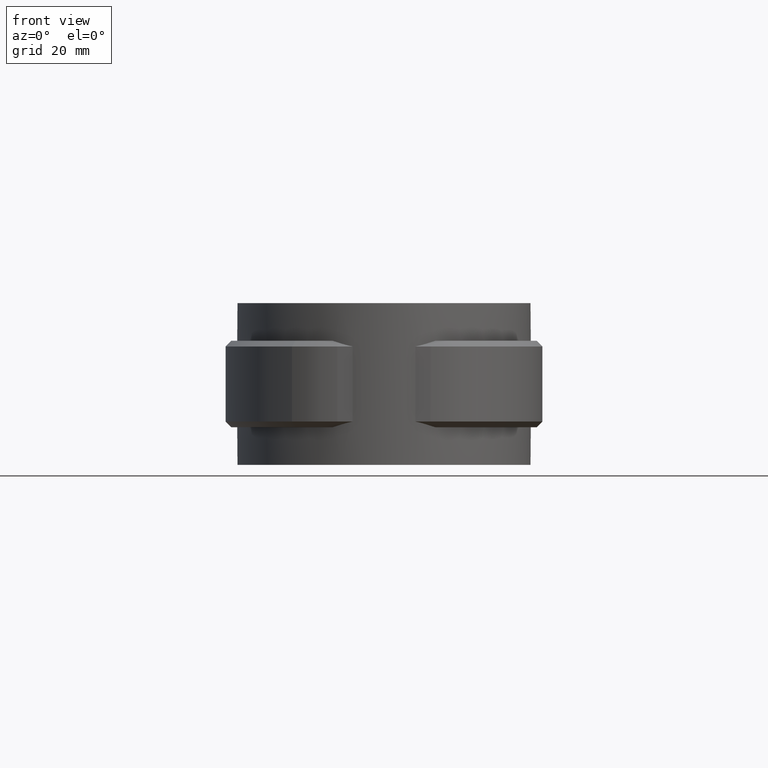
[diagram: clean part render]
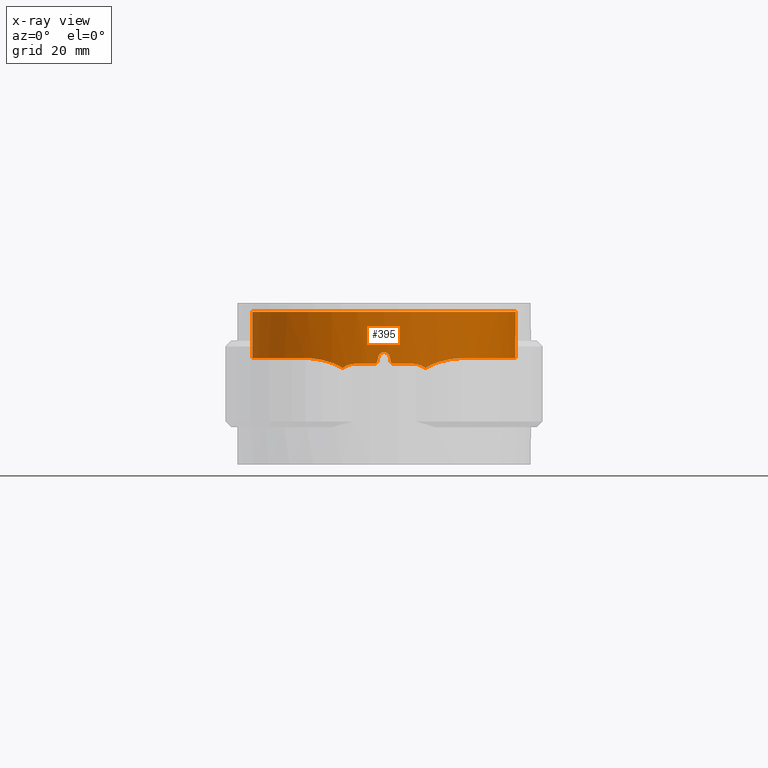
[diagram: x-ray — body ghosted, one internal face saturated and labeled with its STEP entity id]
A machine part, front view, then the same camera in x-ray: the body is ghosted and one INTERNAL B-rep face — a face not visible from any outside direction — is saturated and labeled: STEP entity #395.
In plain terms, the highlighted cylindrical surface (partial cylindrical patch) has radius 22.85 mm, axis along (0, 0, -1).
Its self-contained STEP definition (entity closure, byte-faithful):
#395 = ADVANCED_FACE( '', ( #777 ), #778, .F. );
#777 = FACE_OUTER_BOUND( '', #1726, .T. );
#778 = CYLINDRICAL_SURFACE( '', #1727, 22.8500000000000 );
#1726 = EDGE_LOOP( '', ( #3542, #3543, #3544, #3545, #3546, #3547, #3548, #3549, #3550, #3551, #3552, #3553, #3554, #3555, #3556, #3557 ) );
#1727 = AXIS2_PLACEMENT_3D( '', #3558, #3559, #3560 );
#3542 = ORIENTED_EDGE( '', *, *, #7454, .T. );
#3543 = ORIENTED_EDGE( '', *, *, #7449, .T. );
#3544 = ORIENTED_EDGE( '', *, *, #7451, .T. );
#3545 = ORIENTED_EDGE( '', *, *, #7428, .T. );
#3546 = ORIENTED_EDGE( '', *, *, #7463, .T. );
#3547 = ORIENTED_EDGE( '', *, *, #7464, .T. );
#3548 = ORIENTED_EDGE( '', *, *, #7413, .T. );
#3549 = ORIENTED_EDGE( '', *, *, #7465, .T. );
#3550 = ORIENTED_EDGE( '', *, *, #7466, .T. );
#3551 = ORIENTED_EDGE( '', *, *, #7425, .T. );
#3552 = ORIENTED_EDGE( '', *, *, #7456, .T. );
#3553 = ORIENTED_EDGE( '', *, *, #7407, .T. );
#3554 = ORIENTED_EDGE( '', *, *, #7467, .F. );
#3555 = ORIENTED_EDGE( '', *, *, #7441, .T. );
#3556 = ORIENTED_EDGE( '', *, *, #7391, .T. );
#3557 = ORIENTED_EDGE( '', *, *, #7457, .T. );
#3558 = CARTESIAN_POINT( '', ( 0.000000000000000, 0.000000000000000, 0.000000000000000 ) );
#3559 = DIRECTION( '', ( 0.000000000000000, 0.000000000000000, -1.00000000000000 ) );
#3560 = DIRECTION( '', ( 1.00000000000000, -6.12303176911189E-017, 0.000000000000000 ) );
#7391 = EDGE_CURVE( '', #8423, #8421, #8424, .T. );
#7407 = EDGE_CURVE( '', #8452, #8453, #8454, .T. );
#7413 = EDGE_CURVE( '', #8463, #8461, #8464, .T. );
#7425 = EDGE_CURVE( '', #8475, #8479, #8481, .T. );
#7428 = EDGE_CURVE( '', #8485, #8483, #8486, .T. );
#7441 = EDGE_CURVE( '', #8504, #8423, #8505, .T. );
#7449 = EDGE_CURVE( '', #8516, #8514, #8517, .T. );
#7451 = EDGE_CURVE( '', #8514, #8485, #8519, .T. );
#7454 = EDGE_CURVE( '', #8523, #8516, #8524, .T. );
#7456 = EDGE_CURVE( '', #8479, #8452, #8526, .T. );
#7457 = EDGE_CURVE( '', #8421, #8523, #8527, .T. );
#7463 = EDGE_CURVE( '', #8483, #8534, #8536, .T. );
#7464 = EDGE_CURVE( '', #8534, #8463, #8537, .T. );
#7465 = EDGE_CURVE( '', #8461, #8538, #8539, .T. );
#7466 = EDGE_CURVE( '', #8538, #8475, #8540, .T. );
#7467 = EDGE_CURVE( '', #8504, #8453, #8541, .T. );
#8421 = VERTEX_POINT( '', #10360 );
#8423 = VERTEX_POINT( '', #10377 );
#8424 = LINE( '', #10378, #10379 );
#8452 = VERTEX_POINT( '', #10537 );
#8453 = VERTEX_POINT( '', #10538 );
#8454 = B_SPLINE_CURVE_WITH_KNOTS( '', 3, ( #10539, #10540, #10541, #10542, #10543, #10544, #10545, #10546, #10547, #10548, #10549, #10550, #10551, #10552, #10553, #10554, #10555, #10556, #10557, #10558, #10559, #10560, #10561, #10562, #10563, #10564, #10565, #10566, #10567, #10568, #10569, #10570, #10571, #10572, #10573, #10574, #10575, #10576, #10577, #10578, #10579, #10580, #10581, #10582 ), .UNSPECIFIED., .F., .F., ( 4, 2, 2, 2, 2, 2, 2, 2, 2, 2, 2, 2, 2, 2, 2, 2, 2, 2, 2, 2, 2, 4 ), ( 1.84403634944074E-017, 0.00317004304630910, 0.00634008609261818, 0.00792510761577272, 0.00951012913892726, 0.0126801721852363, 0.0142651937083909, 0.0158502152315454, 0.0190202582778545, 0.0221903013241636, 0.0237753228473181, 0.0253603443704727, 0.0285303874167818, 0.0301154089399363, 0.0317004304630908, 0.0348704735093999, 0.0380405165557090, 0.0396255380788635, 0.0412105596020181, 0.0443806026483272, 0.0475506456946363, 0.0507206887409453 ), .UNSPECIFIED. );
#8461 = VERTEX_POINT( '', #10625 );
#8463 = VERTEX_POINT( '', #10628 );
#8464 = ELLIPSE( '', #10629, 104.094550646447, 22.8500000000000 );
#8475 = VERTEX_POINT( '', #10659 );
#8479 = VERTEX_POINT( '', #10682 );
#8481 = B_SPLINE_CURVE_WITH_KNOTS( '', 3, ( #10701, #10702, #10703, #10704, #10705, #10706 ), .UNSPECIFIED., .F., .F., ( 4, 2, 4 ), ( 4.33680868994202E-018, 0.00120184287673829, 0.00240368575347659 ), .UNSPECIFIED. );
#8483 = VERTEX_POINT( '', #10717 );
#8485 = VERTEX_POINT( '', #10720 );
#8486 = B_SPLINE_CURVE_WITH_KNOTS( '', 3, ( #10721, #10722, #10723, #10724, #10725, #10726 ), .UNSPECIFIED., .F., .F., ( 4, 2, 4 ), ( 1.06054816992686E-012, 0.000336159592974549, 0.000672319184888549 ), .UNSPECIFIED. );
#8504 = VERTEX_POINT( '', #10764 );
#8505 = CIRCLE( '', #10765, 22.8500000000000 );
#8514 = VERTEX_POINT( '', #10799 );
#8516 = VERTEX_POINT( '', #10802 );
#8517 = B_SPLINE_CURVE_WITH_KNOTS( '', 3, ( #10803, #10804, #10805, #10806, #10807, #10808 ), .UNSPECIFIED., .F., .F., ( 4, 2, 4 ), ( 4.88148997695615E-016, 0.00120195648340523, 0.00240391296680997 ), .UNSPECIFIED. );
#8519 = CIRCLE( '', #10827, 22.8500000000000 );
#8523 = VERTEX_POINT( '', #10845 );
#8524 = B_SPLINE_CURVE_WITH_KNOTS( '', 3, ( #10846, #10847, #10848, #10849, #10850, #10851, #10852, #10853, #10854, #10855 ), .UNSPECIFIED., .F., .F., ( 4, 2, 2, 2, 4 ), ( 1.11076499342709E-017, 0.00193678068981355, 0.00387356137962709, 0.00581034206944063, 0.00774712275925417 ), .UNSPECIFIED. );
#8526 = B_SPLINE_CURVE_WITH_KNOTS( '', 3, ( #10863, #10864, #10865, #10866, #10867, #10868, #10869, #10870, #10871, #10872 ), .UNSPECIFIED., .F., .F., ( 4, 2, 2, 2, 4 ), ( 5.81843942167330E-018, 0.00192459303691555, 0.00384918607383110, 0.00577377911074665, 0.00769837214766220 ), .UNSPECIFIED. );
#8527 = B_SPLINE_CURVE_WITH_KNOTS( '', 3, ( #10873, #10874, #10875, #10876, #10877, #10878, #10879, #10880, #10881, #10882, #10883, #10884, #10885, #10886, #10887, #10888, #10889, #10890, #10891, #10892, #10893, #10894, #10895, #10896, #10897, #10898, #10899, #10900, #10901, #10902, #10903, #10904, #10905, #10906, #10907, #10908, #10909, #10910, #10911, #10912, #10913, #10914, #10915, #10916 ), .UNSPECIFIED., .F., .F., ( 4, 2, 2, 2, 2, 2, 2, 2, 2, 2, 2, 2, 2, 2, 2, 2, 2, 2, 2, 2, 2, 4 ), ( 3.46944695195361E-018, 0.00317004307811013, 0.00634008615622025, 0.00792510769527531, 0.00951012923433037, 0.0126801723124405, 0.0142651938514956, 0.0158502153905506, 0.0190202584686607, 0.0221903015467709, 0.0237753230858259, 0.0253603446248810, 0.0285303877029911, 0.0301154092420462, 0.0317004307811012, 0.0348704738592114, 0.0380405169373215, 0.0396255384763766, 0.0412105600154316, 0.0443806030935418, 0.0475506461716519, 0.0507206892497621 ), .UNSPECIFIED. );
#8534 = VERTEX_POINT( '', #10943 );
#8536 = ELLIPSE( '', #10946, 104.094497545427, 22.8500000000000 );
#8537 = B_SPLINE_CURVE_WITH_KNOTS( '', 3, ( #10947, #10948, #10949, #10950, #10951, #10952, #10953, #10954, #10955, #10956 ), .UNSPECIFIED., .F., .F., ( 4, 2, 2, 2, 4 ), ( 8.94056015336375E-019, 0.000671637327123144, 0.00134327465424629, 0.00201491198136943, 0.00268654930849257 ), .UNSPECIFIED. );
#8538 = VERTEX_POINT( '', #10957 );
#8539 = B_SPLINE_CURVE_WITH_KNOTS( '', 3, ( #10958, #10959, #10960, #10961, #10962, #10963 ), .UNSPECIFIED., .F., .F., ( 4, 2, 4 ), ( 1.78811203067275E-018, 0.000336166991338127, 0.000672333982676252 ), .UNSPECIFIED. );
#8540 = CIRCLE( '', #10964, 22.8500000000000 );
#8541 = LINE( '', #10965, #10966 );
#10360 = CARTESIAN_POINT( '', ( 5.97686116700198, 22.0544696284083, -7.99806293628717 ) );
#10377 = CARTESIAN_POINT( '', ( 5.97686116700200, 22.0544696284083, 0.000000000000000 ) );
#10378 = CARTESIAN_POINT( '', ( 5.97686116700199, 22.0544696284083, 0.000000000000000 ) );
#10379 = VECTOR( '', #14639, 1000.00000000000 );
#10537 = CARTESIAN_POINT( '', ( -13.7451875260167, -18.2535563623815, -7.99627160259137 ) );
#10538 = CARTESIAN_POINT( '', ( -5.97686116700199, 22.0544696284083, -7.99806293628717 ) );
#10539 = CARTESIAN_POINT( '', ( -13.7451875260167, -18.2535563623814, -7.99627160259136 ) );
#10540 = CARTESIAN_POINT( '', ( -14.6014626590747, -17.6087690100383, -7.99577809392942 ) );
#10541 = CARTESIAN_POINT( '', ( -15.4023885782134, -16.9117251612029, -7.99768192258080 ) );
#10542 = CARTESIAN_POINT( '', ( -16.8980576635274, -15.4173820424365, -8.00110206449429 ) );
#10543 = CARTESIAN_POINT( '', ( -17.5927878591592, -14.6200705381405, -8.00262879595025 ) );
#10544 = CARTESIAN_POINT( '', ( -18.5538737595713, -13.3476142180275, -8.00309218426568 ) );
#10545 = CARTESIAN_POINT( '', ( -18.8615277240534, -12.9093552327832, -8.00296404397960 ) );
#10546 = CARTESIAN_POINT( '', ( -19.4449927579841, -12.0125325079005, -8.00218297237274 ) );
#10547 = CARTESIAN_POINT( '', ( -19.7193742678155, -11.5563866712115, -8.00153467859180 ) );
#10548 = CARTESIAN_POINT( '', ( -20.4917933719758, -10.1653372809369, -7.99921031318955 ) );
#10549 = CARTESIAN_POINT( '', ( -20.9393430537976, -9.20792778083379, -7.99707160100255 ) );
#10550 = CARTESIAN_POINT( '', ( -21.5103351387829, -7.72708629450050, -7.99610943199218 ) );
#10551 = CARTESIAN_POINT( '', ( -21.6838838863340, -7.22599115546844, -7.99628155030869 ) );
#10552 = CARTESIAN_POINT( '', ( -21.9968060675225, -6.20856596991013, -7.99721535703736 ) );
#10553 = CARTESIAN_POINT( '', ( -22.1366207863939, -5.69014253708243, -7.99794865544021 ) );
#10554 = CARTESIAN_POINT( '', ( -22.4991120053981, -4.12956010977328, -8.00018055878470 ) );
#10555 = CARTESIAN_POINT( '', ( -22.6657057876294, -3.08300421862504, -8.00161499496216 ) );
#10556 = CARTESIAN_POINT( '', ( -22.8535063778009, -0.977946881608838, -8.00242400815246 ) );
#10557 = CARTESIAN_POINT( '', ( -22.8747089415520, 0.0805549129978686, -8.00179842017110 ) );
#10558 = CARTESIAN_POINT( '', ( -22.7945728596217, 1.67750490642550, -7.99988256730918 ) );
#10559 = CARTESIAN_POINT( '', ( -22.7488263826334, 2.21307448449683, -7.99909993040699 ) );
#10560 = CARTESIAN_POINT( '', ( -22.6208392431182, 3.27176288843333, -7.99763577880349 ) );
#10561 = CARTESIAN_POINT( '', ( -22.5386451866891, 3.79635526330945, -7.99695380675902 ) );
#10562 = CARTESIAN_POINT( '', ( -22.2385985378765, 5.35617359857218, -7.99581439911111 ) );
#10563 = CARTESIAN_POINT( '', ( -21.9675338496991, 6.37750653398686, -7.99689788653804 ) );
#10564 = CARTESIAN_POINT( '', ( -21.4542049025115, 7.88164007413646, -7.99899681372121 ) );
#10565 = CARTESIAN_POINT( '', ( -21.2652436323218, 8.37835717821457, -7.99973674000940 ) );
#10566 = CARTESIAN_POINT( '', ( -20.8507946196637, 9.36225504226126, -8.00094347261857 ) );
#10567 = CARTESIAN_POINT( '', ( -20.6249821364067, 9.84967442949806, -8.00140766923123 ) );
#10568 = CARTESIAN_POINT( '', ( -19.9032645714036, 11.2745934462192, -8.00209245863424 ) );
#10569 = CARTESIAN_POINT( '', ( -19.3602098795956, 12.1828406030148, -8.00153377176461 ) );
#10570 = CARTESIAN_POINT( '', ( -18.1530659394078, 13.9178133605811, -7.99913320625503 ) );
#10571 = CARTESIAN_POINT( '', ( -17.4889843485493, 14.7445441182418, -7.99729036923797 ) );
#10572 = CARTESIAN_POINT( '', ( -16.3988068278135, 15.9212922943994, -7.99613600533815 ) );
#10573 = CARTESIAN_POINT( '', ( -16.0209440561239, 16.3013672571772, -7.99608691237626 ) );
#10574 = CARTESIAN_POINT( '', ( -15.2453517644984, 17.0289304561245, -7.99702610753499 ) );
#10575 = CARTESIAN_POINT( '', ( -14.8464049878327, 17.3777565423573, -7.99790707172348 ) );
#10576 = CARTESIAN_POINT( '', ( -13.6166535096742, 18.3800952454065, -8.00082820811167 ) );
#10577 = CARTESIAN_POINT( '', ( -12.7530950942392, 18.9896796107435, -8.00305973268800 ) );
#10578 = CARTESIAN_POINT( '', ( -10.9375626850127, 20.0902734852668, -8.00514104661395 ) );
#10579 = CARTESIAN_POINT( '', ( -9.98007747159388, 20.5829714988920, -8.00496024213076 ) );
#10580 = CARTESIAN_POINT( '', ( -8.01883971137840, 21.4233254128867, -8.00232466419274 ) );
#10581 = CARTESIAN_POINT( '', ( -7.01143530155087, 21.7740953517490, -7.99988755246679 ) );
#10582 = CARTESIAN_POINT( '', ( -5.97686116700200, 22.0544696284083, -7.99806293628719 ) );
#10625 = CARTESIAN_POINT( '', ( -1.16219512100915, -22.8204251165639, -8.60975609337373 ) );
#10628 = CARTESIAN_POINT( '', ( -0.975610000000029, -22.8291630404599, -7.78048800000004 ) );
#10629 = AXIS2_PLACEMENT_3D( '', #14658, #14659, #14660 );
#10659 = CARTESIAN_POINT( '', ( -5.00000000000004, -22.2962440783196, -9.00000000000000 ) );
#10682 = CARTESIAN_POINT( '', ( -7.17024469519202, -21.6958542355694, -9.75408704380648 ) );
#10701 = CARTESIAN_POINT( '', ( -5.00000000000004, -22.2962440783196, -9.00000000000000 ) );
#10702 = CARTESIAN_POINT( '', ( -5.39665013359659, -22.2072940892086, -9.00000000000000 ) );
#10703 = CARTESIAN_POINT( '', ( -5.77978388945998, -22.1102804215508, -9.06550829311608 ) );
#10704 = CARTESIAN_POINT( '', ( -6.52056054541489, -21.9032575728373, -9.32325767071936 ) );
#10705 = CARTESIAN_POINT( '', ( -6.86161284013755, -21.7978537188551, -9.51015846453803 ) );
#10706 = CARTESIAN_POINT( '', ( -7.17024469519208, -21.6958542355693, -9.75408704380659 ) );
#10717 = CARTESIAN_POINT( '', ( 1.16219499999999, -22.8204251227267, -8.60975599999999 ) );
#10720 = CARTESIAN_POINT( '', ( 1.64999999892696, -22.7903488346173, -9.00000000000000 ) );
#10721 = CARTESIAN_POINT( '', ( 1.64999999999995, -22.7903488345396, -8.99999999999995 ) );
#10722 = CARTESIAN_POINT( '', ( 1.53663326406715, -22.7985564804886, -9.00000000048651 ) );
#10723 = CARTESIAN_POINT( '', ( 1.42653054395589, -22.8056002253334, -8.96146270802013 ) );
#10724 = CARTESIAN_POINT( '', ( 1.24917237579917, -22.8160022660874, -8.81972438097655 ) );
#10725 = CARTESIAN_POINT( '', ( 1.18714543681260, -22.8191544508283, -8.72064683250062 ) );
#10726 = CARTESIAN_POINT( '', ( 1.16219499999998, -22.8204251227267, -8.60975599999999 ) );
#10764 = CARTESIAN_POINT( '', ( -5.97686116700201, 22.0544696284083, 0.000000000000000 ) );
#10765 = AXIS2_PLACEMENT_3D( '', #14680, #14681, #14682 );
#10799 = CARTESIAN_POINT( '', ( 5.00000000000000, -22.2962440783196, -9.00000000000000 ) );
#10802 = CARTESIAN_POINT( '', ( 7.17024469519067, -21.6958542355695, -9.75408704380556 ) );
#10803 = CARTESIAN_POINT( '', ( 7.17024469519035, -21.6958542355699, -9.75408704380531 ) );
#10804 = CARTESIAN_POINT( '', ( 6.86161041538354, -21.7978545202100, -9.51015654812315 ) );
#10805 = CARTESIAN_POINT( '', ( 6.52253328632292, -21.9026663087166, -9.32422070453599 ) );
#10806 = CARTESIAN_POINT( '', ( 5.78220370035651, -22.1096438747837, -9.06607526107402 ) );
#10807 = CARTESIAN_POINT( '', ( 5.39663402050363, -22.2072977026183, -9.00000000000001 ) );
#10808 = CARTESIAN_POINT( '', ( 4.99999999999999, -22.2962440783196, -9.00000000000000 ) );
#10827 = AXIS2_PLACEMENT_3D( '', #14689, #14690, #14691 );
#10845 = CARTESIAN_POINT( '', ( 13.7451875260167, -18.2535563623815, -7.99627160259137 ) );
#10846 = CARTESIAN_POINT( '', ( 13.7451875260167, -18.2535563623814, -7.99627160259136 ) );
#10847 = CARTESIAN_POINT( '', ( 13.2278126818471, -18.6431469776662, -8.00648609637059 ) );
#10848 = CARTESIAN_POINT( '', ( 12.6967040455499, -19.0086644320518, -8.04287901559790 ) );
#10849 = CARTESIAN_POINT( '', ( 11.6080936218479, -19.6923279369670, -8.17429810874984 ) );
#10850 = CARTESIAN_POINT( '', ( 11.0501205418759, -20.0104267683912, -8.26948811453165 ) );
#10851 = CARTESIAN_POINT( '', ( 9.92655296182876, -20.5909176517013, -8.53299876251298 ) );
#10852 = CARTESIAN_POINT( '', ( 9.35608168669148, -20.8554928865426, -8.70231708511970 ) );
#10853 = CARTESIAN_POINT( '', ( 8.24040771236116, -21.3209645373452, -9.13863569342874 ) );
#10854 = CARTESIAN_POINT( '', ( 7.69178348783565, -21.5234913167977, -9.40341613433435 ) );
#10855 = CARTESIAN_POINT( '', ( 7.17024469518742, -21.6958542355708, -9.75408704380942 ) );
#10863 = CARTESIAN_POINT( '', ( -7.17024469519195, -21.6958542355693, -9.75408704380637 ) );
#10864 = CARTESIAN_POINT( '', ( -7.69187351972379, -21.5234615622342, -9.40335559892603 ) );
#10865 = CARTESIAN_POINT( '', ( -8.24047319440643, -21.3209358565410, -9.13861293420062 ) );
#10866 = CARTESIAN_POINT( '', ( -9.35592854785783, -20.8555581386317, -8.70237412545379 ) );
#10867 = CARTESIAN_POINT( '', ( -9.92642759032604, -20.5909723580951, -8.53304046193769 ) );
#10868 = CARTESIAN_POINT( '', ( -11.0496716275067, -20.0106687614906, -8.26958110883298 ) );
#10869 = CARTESIAN_POINT( '', ( -11.6070698474582, -19.6929468071330, -8.17444297391190 ) );
#10870 = CARTESIAN_POINT( '', ( -12.6965017789033, -19.0088155067761, -8.04288218433763 ) );
#10871 = CARTESIAN_POINT( '', ( -13.2278021081037, -18.6431549398453, -8.00648630512723 ) );
#10872 = CARTESIAN_POINT( '', ( -13.7451875260167, -18.2535563623814, -7.99627160259135 ) );
#10873 = CARTESIAN_POINT( '', ( 5.97686116700199, 22.0544696284083, -7.99806293628718 ) );
#10874 = CARTESIAN_POINT( '', ( 7.01143548196948, 21.7740953028547, -7.99988755278499 ) );
#10875 = CARTESIAN_POINT( '', ( 8.01404762350000, 21.4246368353252, -8.00230956324209 ) );
#10876 = CARTESIAN_POINT( '', ( 9.95795472894794, 20.5931823779988, -8.00493905481668 ) );
#10877 = CARTESIAN_POINT( '', ( 10.8992422127147, 20.1111702307964, -8.00515454280293 ) );
#10878 = CARTESIAN_POINT( '', ( 12.2643926408483, 19.2870347738313, -8.00363431056713 ) );
#10879 = CARTESIAN_POINT( '', ( 12.7128878064341, 18.9945035227543, -8.00284112949909 ) );
#10880 = CARTESIAN_POINT( '', ( 13.5878610445616, 18.3787571040207, -8.00096519471323 ) );
#10881 = CARTESIAN_POINT( '', ( 14.0121140876056, 18.0572548725910, -7.99989040825880 ) );
#10882 = CARTESIAN_POINT( '', ( 15.2461850436421, 17.0529035816828, -7.99695436852239 ) );
#10883 = CARTESIAN_POINT( '', ( 16.0174960287352, 16.3303963988734, -7.99576079257591 ) );
#10884 = CARTESIAN_POINT( '', ( 17.0979388525817, 15.1678234558254, -7.99686273755624 ) );
#10885 = CARTESIAN_POINT( '', ( 17.4452867950226, 14.7671167835252, -7.99752471479613 ) );
#10886 = CARTESIAN_POINT( '', ( 18.1139169837869, 13.9388586678873, -7.99893911913195 ) );
#10887 = CARTESIAN_POINT( '', ( 18.4363869040529, 13.5095277098120, -7.99969322085148 ) );
#10888 = CARTESIAN_POINT( '', ( 19.3528943041517, 12.1954412025470, -8.00152579516513 ) );
#10889 = CARTESIAN_POINT( '', ( 19.8965015602484, 11.2857590722033, -8.00208610889802 ) );
#10890 = CARTESIAN_POINT( '', ( 20.8531823110765, 9.40127223697905, -8.00120365913699 ) );
#10891 = CARTESIAN_POINT( '', ( 21.2662520276613, 8.42646564670237, -7.99976228330782 ) );
#10892 = CARTESIAN_POINT( '', ( 21.7853527964981, 6.91411441776020, -7.99764423764791 ) );
#10893 = CARTESIAN_POINT( '', ( 21.9419239672955, 6.39990400198893, -7.99696693858725 ) );
#10894 = CARTESIAN_POINT( '', ( 22.2165583847864, 5.36948155380272, -7.99620273547805 ) );
#10895 = CARTESIAN_POINT( '', ( 22.3352128396471, 4.85191773757434, -7.99618901026060 ) );
#10896 = CARTESIAN_POINT( '', ( 22.6363537652718, 3.29231552430282, -7.99730974496168 ) );
#10897 = CARTESIAN_POINT( '', ( 22.7642766476596, 2.24339873368633, -7.99919040340764 ) );
#10898 = CARTESIAN_POINT( '', ( 22.8467180456463, 0.656225445339562, -8.00111405153714 ) );
#10899 = CARTESIAN_POINT( '', ( 22.8558934501877, 0.124859869719754, -8.00162434645790 ) );
#10900 = CARTESIAN_POINT( '', ( 22.8367899002396, -0.942593467893981, -8.00218138229480 ) );
#10901 = CARTESIAN_POINT( '', ( 22.8082982044997, -1.47902190764851, -8.00222512101893 ) );
#10902 = CARTESIAN_POINT( '', ( 22.6678380924190, -3.07009891870488, -8.00163221456187 ) );
#10903 = CARTESIAN_POINT( '', ( 22.5012258872981, -4.11511386099822, -8.00020197076186 ) );
#10904 = CARTESIAN_POINT( '', ( 22.0253389225093, -6.17444522761301, -7.99725528632869 ) );
#10905 = CARTESIAN_POINT( '', ( 21.7160731843294, -7.18876363629054, -7.99579791686863 ) );
#10906 = CARTESIAN_POINT( '', ( 21.1413121594365, -8.68638788384821, -7.99671454935107 ) );
#10907 = CARTESIAN_POINT( '', ( 20.9317676009025, -9.17966926231614, -7.99743481233077 ) );
#10908 = CARTESIAN_POINT( '', ( 20.4821229394219, -10.1433654453592, -7.99905703644062 ) );
#10909 = CARTESIAN_POINT( '', ( 20.2413902491186, -10.6154738524167, -7.99996020726915 ) );
#10910 = CARTESIAN_POINT( '', ( 19.4722333125456, -12.0030532422216, -8.00228544469424 ) );
#10911 = CARTESIAN_POINT( '', ( 18.8970748792681, -12.8899160043015, -8.00322899268584 ) );
#10912 = CARTESIAN_POINT( '', ( 17.6206061025088, -14.5864188261150, -8.00266976111399 ) );
#10913 = CARTESIAN_POINT( '', ( 16.9148082427623, -15.3996729535128, -8.00114093309448 ) );
#10914 = CARTESIAN_POINT( '', ( 15.4063552298102, -16.9087221130833, -7.99769043588949 ) );
#10915 = CARTESIAN_POINT( '', ( 14.6014655284411, -17.6087668493645, -7.99577809227568 ) );
#10916 = CARTESIAN_POINT( '', ( 13.7451875260167, -18.2535563623814, -7.99627160259136 ) );
#10943 = CARTESIAN_POINT( '', ( 0.975609757981817, -22.8291630508026, -7.78048781325256 ) );
#10946 = AXIS2_PLACEMENT_3D( '', #14700, #14701, #14702 );
#10947 = CARTESIAN_POINT( '', ( 0.975609757981820, -22.8291630508026, -7.78048781325256 ) );
#10948 = CARTESIAN_POINT( '', ( 0.925759611057577, -22.8312934087867, -7.55893169483418 ) );
#10949 = CARTESIAN_POINT( '', ( 0.802000848113020, -22.8366098643602, -7.36098155301806 ) );
#10950 = CARTESIAN_POINT( '', ( 0.447419710234556, -22.8463076023295, -7.07730528269426 ) );
#10951 = CARTESIAN_POINT( '', ( 0.227103399425465, -22.8500000104525, -6.99999978043801 ) );
#10952 = CARTESIAN_POINT( '', ( -0.227105502769264, -22.8499999895475, -7.00000021269580 ) );
#10953 = CARTESIAN_POINT( '', ( -0.447456633074006, -22.8463067278190, -7.07732824922196 ) );
#10954 = CARTESIAN_POINT( '', ( -0.801998773867364, -22.8366097857538, -7.36098614709214 ) );
#10955 = CARTESIAN_POINT( '', ( -0.925759891921152, -22.8312933973134, -7.55893185619929 ) );
#10956 = CARTESIAN_POINT( '', ( -0.975610000000031, -22.8291630404599, -7.78048800000004 ) );
#10957 = CARTESIAN_POINT( '', ( -1.65000000000003, -22.7903488345396, -8.99999999999997 ) );
#10958 = CARTESIAN_POINT( '', ( -1.16219512100915, -22.8204251165639, -8.60975609337373 ) );
#10959 = CARTESIAN_POINT( '', ( -1.18714554844780, -22.8191544450104, -8.72064688643459 ) );
#10960 = CARTESIAN_POINT( '', ( -1.24916474685743, -22.8160027002550, -8.81971695351357 ) );
#10961 = CARTESIAN_POINT( '', ( -1.42653137035029, -22.8056001901341, -8.96146462712579 ) );
#10962 = CARTESIAN_POINT( '', ( -1.53663329736967, -22.7985564780776, -8.99999999999994 ) );
#10963 = CARTESIAN_POINT( '', ( -1.65000000000003, -22.7903488345396, -8.99999999999994 ) );
#10964 = AXIS2_PLACEMENT_3D( '', #14703, #14704, #14705 );
#10965 = CARTESIAN_POINT( '', ( -5.97686116700201, 22.0544696284083, 0.000000000000000 ) );
#10966 = VECTOR( '', #14706, 1000.00000000000 );
#14639 = DIRECTION( '', ( 0.000000000000000, 0.000000000000000, -1.00000000000000 ) );
#14658 = CARTESIAN_POINT( '', ( 0.000000000000000, 0.000000000000000, -3.44443890776445 ) );
#14659 = DIRECTION( '', ( 0.975609806487711, 0.000000000000000, -0.219511971165610 ) );
#14660 = DIRECTION( '', ( 0.219511971165610, 0.000000000000000, 0.975609806487711 ) );
#14680 = CARTESIAN_POINT( '', ( 0.000000000000000, 0.000000000000000, 0.000000000000000 ) );
#14681 = DIRECTION( '', ( 0.000000000000000, 0.000000000000000, 1.00000000000000 ) );
#14682 = DIRECTION( '', ( 1.00000000000000, 0.000000000000000, 0.000000000000000 ) );
#14689 = CARTESIAN_POINT( '', ( 0.000000000000000, 0.000000000000000, -9.00000000000000 ) );
#14690 = DIRECTION( '', ( 6.12303176911189E-017, 0.000000000000000, -1.00000000000000 ) );
#14691 = DIRECTION( '', ( -1.00000000000000, 0.000000000000000, -6.12303176911189E-017 ) );
#14700 = CARTESIAN_POINT( '', ( 0.000000000000000, 0.000000000000000, -3.44444212055027 ) );
#14701 = DIRECTION( '', ( -0.975609781292647, 0.000000000000000, -0.219512083143762 ) );
#14702 = DIRECTION( '', ( -0.219512083143762, 0.000000000000000, 0.975609781292647 ) );
#14703 = CARTESIAN_POINT( '', ( 0.000000000000000, 0.000000000000000, -9.00000000000000 ) );
#14704 = DIRECTION( '', ( 6.12303176911189E-017, 0.000000000000000, -1.00000000000000 ) );
#14705 = DIRECTION( '', ( -1.00000000000000, 0.000000000000000, -6.12303176911189E-017 ) );
#14706 = DIRECTION( '', ( 0.000000000000000, 0.000000000000000, -1.00000000000000 ) );